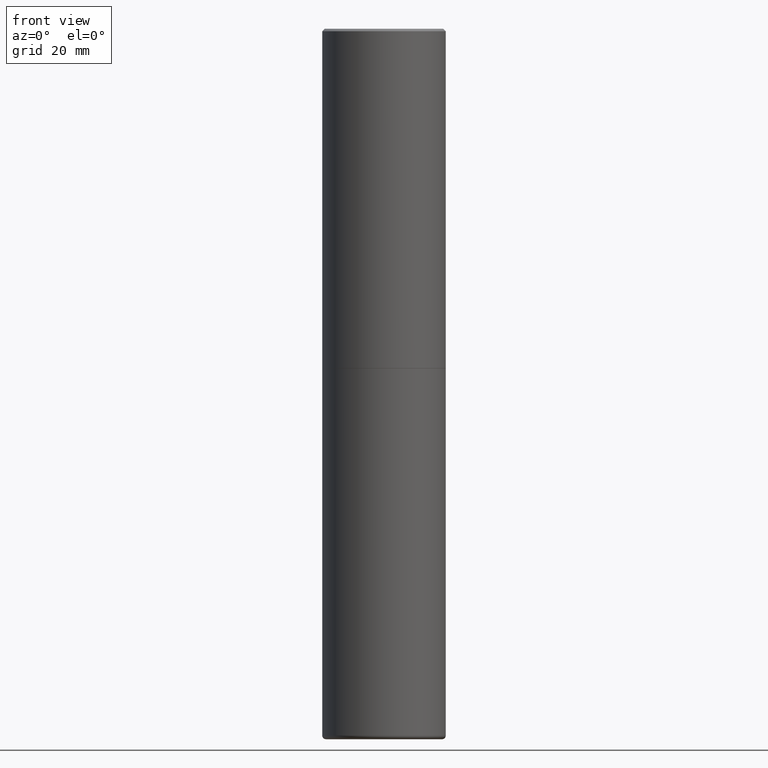
[diagram: clean part render]
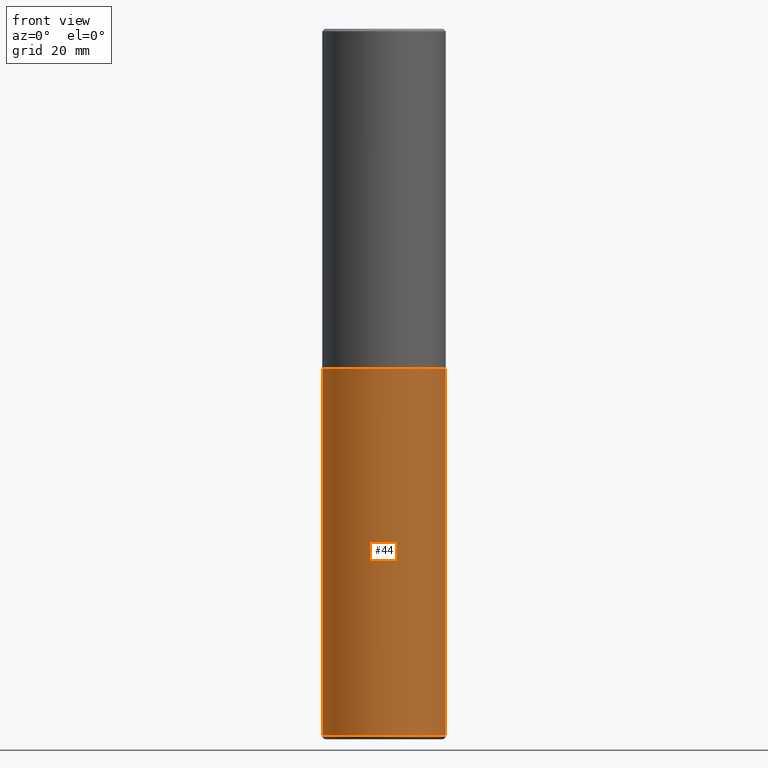
[diagram: same view with one face highlighted and labeled with its STEP entity id]
A machine part, front view. The second image highlights one B-rep face of the part: STEP entity #44.
In plain terms, the highlighted cylindrical surface (partial cylindrical patch) has radius 12.7 mm, axis along (-0, 0, 1).
Its self-contained STEP definition (entity closure, byte-faithful):
#8 = EDGE_CURVE ( 'NONE', #60, #394, #221, .T. ) ;
#11 = CARTESIAN_POINT ( 'NONE',  ( 0.000000000000000000, 0.000000000000000000, 0.000000000000000000 ) ) ;
#24 = CARTESIAN_POINT ( 'NONE',  ( -0.5000000000000000000, 3.552713678800500929E-15, -2.459467545127452891E-29 ) ) ;
#38 = AXIS2_PLACEMENT_3D ( 'NONE', #230, #43, #297 ) ;
#39 = VECTOR ( 'NONE', #244, 39.37007874015748143 ) ;
#43 = DIRECTION ( 'NONE',  ( -2.445468806185136597E-29, 3.491481338843145583E-15, 1.000000000000000000 ) ) ;
#44 = ADVANCED_FACE ( 'NONE', ( #289 ), #138, .T. ) ;
#59 = EDGE_CURVE ( 'NONE', #136, #394, #338, .T. ) ;
#60 = VERTEX_POINT ( 'NONE', #105 ) ;
#61 = ORIENTED_EDGE ( 'NONE', *, *, #8, .T. ) ;
#68 = DIRECTION ( 'NONE',  ( -2.445468806185136597E-29, 3.491481338843145583E-15, 1.000000000000000000 ) ) ;
#105 = CARTESIAN_POINT ( 'NONE',  ( 0.4999999999999998335, -2.346275459702591989E-14, -5.719999999999998863 ) ) ;
#136 = VERTEX_POINT ( 'NONE', #178 ) ;
#138 = CYLINDRICAL_SURFACE ( 'NONE', #407, 0.5000000000000000000 ) ;
#148 = VERTEX_POINT ( 'NONE', #151 ) ;
#151 = CARTESIAN_POINT ( 'NONE',  ( -0.4999999999999998335, -1.641855957938228876E-14, -5.719999999999998863 ) ) ;
#178 = CARTESIAN_POINT ( 'NONE',  ( -0.5000000000000000000, -1.123370979120021648E-14, -2.749999999999999556 ) ) ;
#184 = CARTESIAN_POINT ( 'NONE',  ( 0.5000000000000000000, -3.491481338843133355E-15, 2.438088387897967896E-29 ) ) ;
#193 = ORIENTED_EDGE ( 'NONE', *, *, #259, .F. ) ;
#220 = AXIS2_PLACEMENT_3D ( 'NONE', #290, #300, #272 ) ;
#221 = LINE ( 'NONE', #184, #253 ) ;
#224 = EDGE_LOOP ( 'NONE', ( #193, #319, #61, #350 ) ) ;
#230 = CARTESIAN_POINT ( 'NONE',  ( 6.725039217009123399E-29, -9.601573681818648281E-15, -2.749999999999999556 ) ) ;
#244 = DIRECTION ( 'NONE',  ( -2.445468806185136877E-29, 3.491481338843145188E-15, 1.000000000000000000 ) ) ;
#253 = VECTOR ( 'NONE', #320, 39.37007874015748143 ) ;
#259 = EDGE_CURVE ( 'NONE', #148, #136, #343, .T. ) ;
#272 = DIRECTION ( 'NONE',  ( 1.000000000000000000, -6.982962677686269077E-15, 0.000000000000000000 ) ) ;
#288 = CIRCLE ( 'NONE', #220, 0.5000000000000001110 ) ;
#289 = FACE_OUTER_BOUND ( 'NONE', #224, .T. ) ;
#290 = CARTESIAN_POINT ( 'NONE',  ( 1.398808157137897855E-28, -1.997127325818278653E-14, -5.719999999999998863 ) ) ;
#297 = DIRECTION ( 'NONE',  ( 1.000000000000000000, -6.982962677686266711E-15, 0.000000000000000000 ) ) ;
#300 = DIRECTION ( 'NONE',  ( -2.445468806185136597E-29, 3.491481338843145583E-15, 1.000000000000000000 ) ) ;
#319 = ORIENTED_EDGE ( 'NONE', *, *, #410, .T. ) ;
#320 = DIRECTION ( 'NONE',  ( -2.445468806185136877E-29, 3.491481338843145188E-15, 1.000000000000000000 ) ) ;
#337 = CARTESIAN_POINT ( 'NONE',  ( 0.5000000000000000000, -1.309305502066178164E-14, -2.749999999999999556 ) ) ;
#338 = CIRCLE ( 'NONE', #38, 0.5000000000000000000 ) ;
#343 = LINE ( 'NONE', #24, #39 ) ;
#350 = ORIENTED_EDGE ( 'NONE', *, *, #59, .F. ) ;
#394 = VERTEX_POINT ( 'NONE', #337 ) ;
#405 = DIRECTION ( 'NONE',  ( 1.000000000000000000, -6.982962677686266711E-15, 4.876176775795935793E-29 ) ) ;
#407 = AXIS2_PLACEMENT_3D ( 'NONE', #11, #68, #405 ) ;
#410 = EDGE_CURVE ( 'NONE', #148, #60, #288, .T. ) ;